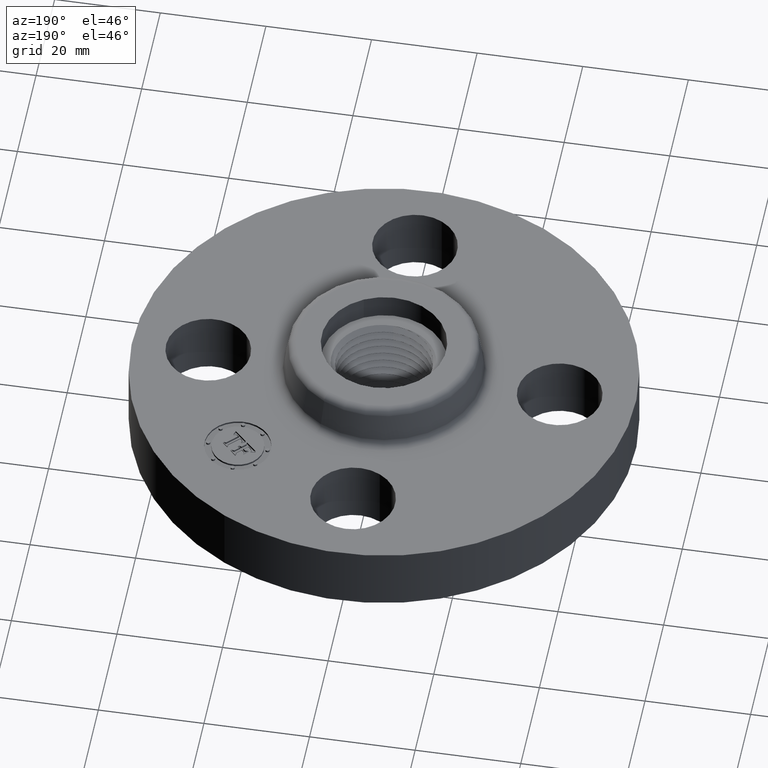
[diagram: clean part render]
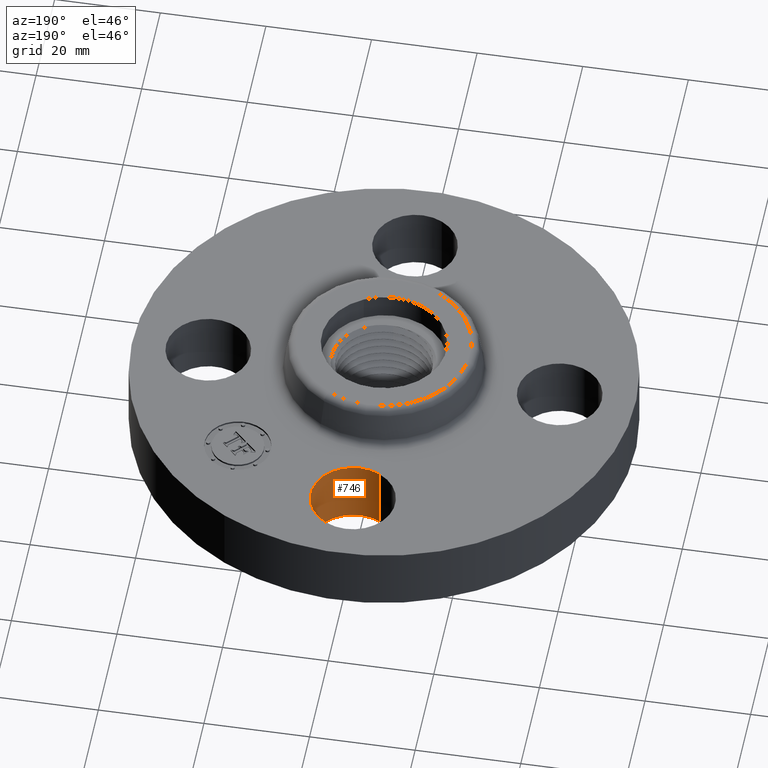
[diagram: same view with one face highlighted and labeled with its STEP entity id]
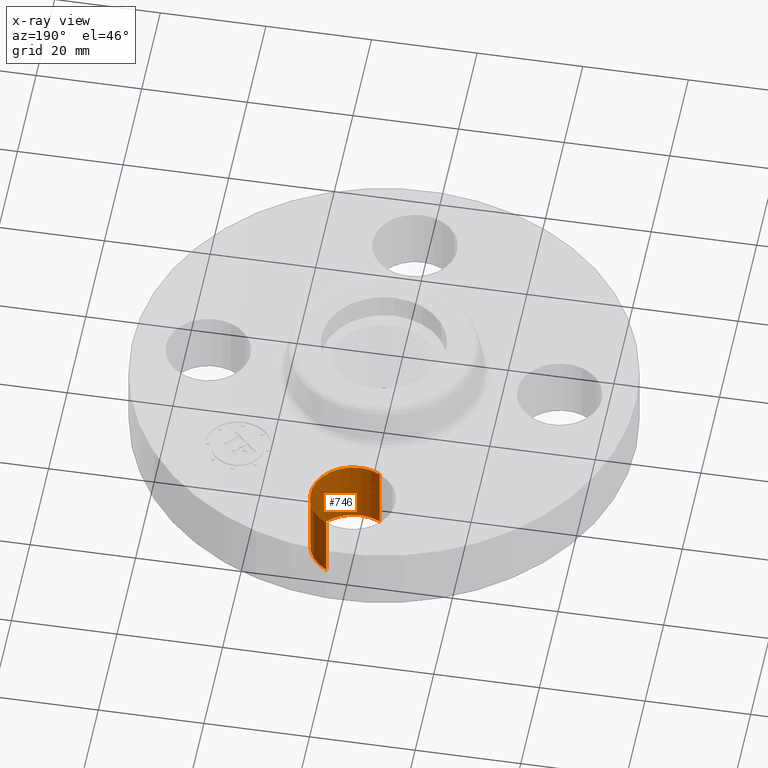
[diagram: x-ray of the same camera — body ghosted, the highlighted face saturated]
A machine part, auxiliary view. The second image highlights one B-rep face of the part: STEP entity #746.
The next image is the same camera in x-ray: the body ghosted, the highlighted face saturated — about 0% of this face is hidden behind the body in this view.
In plain terms, the highlighted cylindrical surface (partial cylindrical patch) has radius 8.001 mm, axis along (0, 0, -1).
Its self-contained STEP definition (entity closure, byte-faithful):
#696=AXIS2_PLACEMENT_3D('Circle Axis2P3D',#694,#695,$) ;
#707=AXIS2_PLACEMENT_3D('Cylinder Axis2P3D',#704,#705,#706) ;
#737=AXIS2_PLACEMENT_3D('Circle Axis2P3D',#735,#736,$) ;
#689=CARTESIAN_POINT('Vertex',(-0.151019044661,1.03356149301,0.)) ;
#691=CARTESIAN_POINT('Vertex',(0.151019044661,1.586438507,0.)) ;
#694=CARTESIAN_POINT('Axis2P3D Location',(-2.79741234551E-016,1.31000000001,0.)) ;
#704=CARTESIAN_POINT('Axis2P3D Location',(-2.40643096033E-016,1.31000000001,0.496062992128)) ;
#709=CARTESIAN_POINT('Line Origine',(-0.151019044661,1.03356149301,0.250000000001)) ;
#713=CARTESIAN_POINT('Vertex',(-0.151019044661,1.03356149301,0.500000000002)) ;
#716=CARTESIAN_POINT('Line Origine',(0.151019044661,1.586438507,0.250000000001)) ;
#720=CARTESIAN_POINT('Vertex',(0.151019044661,1.586438507,0.500000000002)) ;
#735=CARTESIAN_POINT('Axis2P3D Location',(-2.40643096033E-016,1.31000000001,0.500000000002)) ;
#695=DIRECTION('Axis2P3D Direction',(0.,0.,-0.0393700787402)) ;
#705=DIRECTION('Axis2P3D Direction',(0.,0.,-0.0393700787402)) ;
#706=DIRECTION('Axis2P3D XDirection',(0.0188750212049,0.0345504945626,0.)) ;
#710=DIRECTION('Vector Direction',(0.,0.,-0.0393700787402)) ;
#717=DIRECTION('Vector Direction',(0.,0.,-0.0393700787402)) ;
#736=DIRECTION('Axis2P3D Direction',(0.,0.,-0.0393700787402)) ;
#711=VECTOR('Line Direction',#710,0.0393700787402) ;
#718=VECTOR('Line Direction',#717,0.0393700787402) ;
#741=ORIENTED_EDGE('',*,*,#722,.F.) ;
#742=ORIENTED_EDGE('',*,*,#698,.T.) ;
#743=ORIENTED_EDGE('',*,*,#715,.T.) ;
#744=ORIENTED_EDGE('',*,*,#739,.F.) ;
#746=ADVANCED_FACE('PartBody',(#745),#708,.F.) ;
#697=CIRCLE('generated circle',#696,0.315000000001) ;
#738=CIRCLE('generated circle',#737,0.315000000001) ;
#708=CYLINDRICAL_SURFACE('generated cylinder',#707,0.315000000001) ;
#698=EDGE_CURVE('',#692,#690,#697,.T.) ;
#715=EDGE_CURVE('',#690,#714,#712,.F.) ;
#722=EDGE_CURVE('',#692,#721,#719,.F.) ;
#739=EDGE_CURVE('',#721,#714,#738,.T.) ;
#740=EDGE_LOOP('',(#741,#742,#743,#744)) ;
#745=FACE_OUTER_BOUND('',#740,.T.) ;
#712=LINE('Line',#709,#711) ;
#719=LINE('Line',#716,#718) ;
#690=VERTEX_POINT('',#689) ;
#692=VERTEX_POINT('',#691) ;
#714=VERTEX_POINT('',#713) ;
#721=VERTEX_POINT('',#720) ;